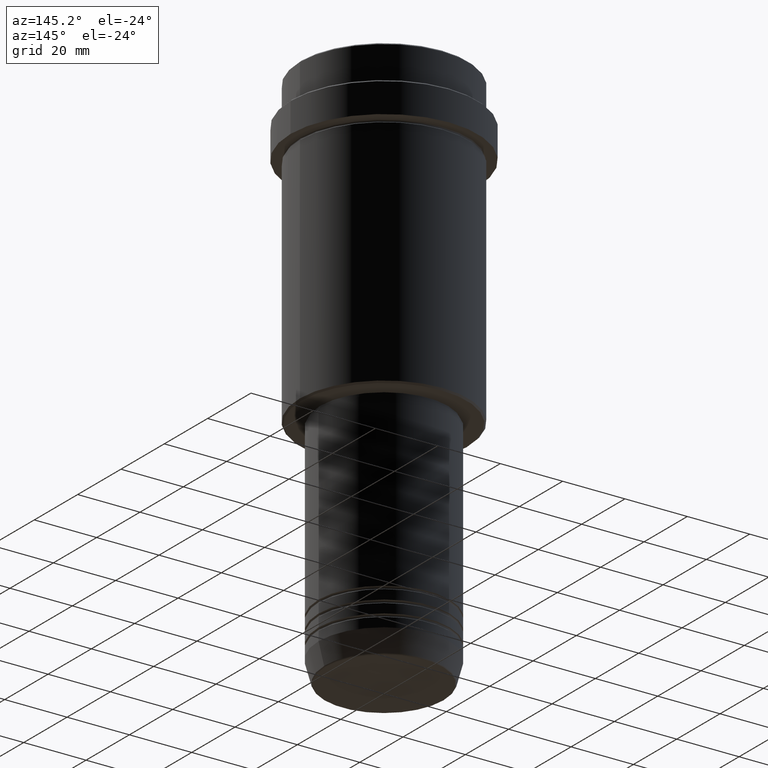
[diagram: clean part render]
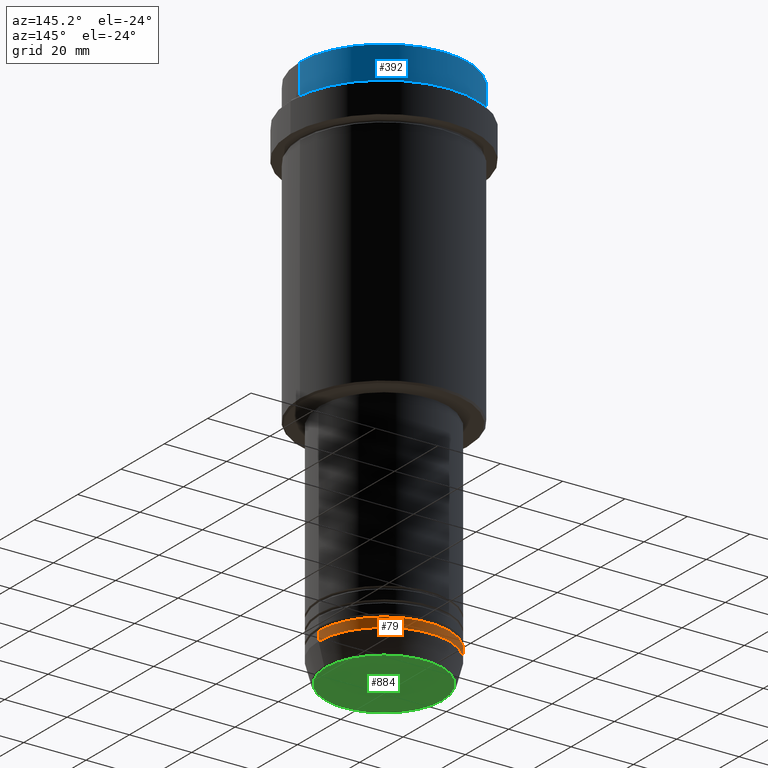
[diagram: same view with three faces highlighted in distinct colors, each labeled with its STEP entity id]
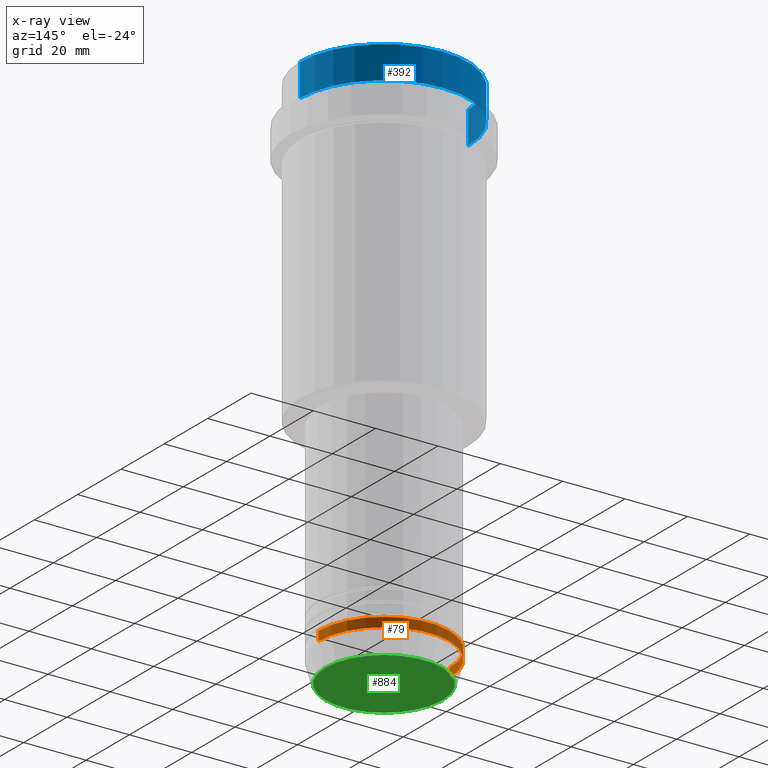
[diagram: x-ray of the same camera — body ghosted, the three highlighted faces saturated]
A machine part, auxiliary view with three faces highlighted in distinct colors.
The next image is the same camera in x-ray (body ghosted, the three faces saturated) — at least one of them is partly hidden behind the body in this view.
Their STEP definitions:

[orange] entity #79 — the highlighted cylindrical surface (partial cylindrical patch) has radius 21 mm, axis along (-0, -0, 1).
#9 = VECTOR ( 'NONE', #418, 1000.000000000000000 ) ;
#78 = CARTESIAN_POINT ( 'NONE',  ( 0.000000000000000000, 0.000000000000000000, 0.000000000000000000 ) ) ;
#79 = ADVANCED_FACE ( 'NONE', ( #920 ), #813, .T. ) ;
#156 = CIRCLE ( 'NONE', #743, 21.00000000000000000 ) ;
#157 = EDGE_LOOP ( 'NONE', ( #782, #547, #1039, #1187 ) ) ;
#205 = DIRECTION ( 'NONE',  ( 1.000000000000000000, 0.000000000000000000, 0.000000000000000000 ) ) ;
#209 = CARTESIAN_POINT ( 'NONE',  ( 21.00000000000000000, 0.000000000000000000, -163.0000000000000000 ) ) ;
#210 = EDGE_CURVE ( 'NONE', #1043, #223, #870, .T. ) ;
#223 = VERTEX_POINT ( 'NONE', #299 ) ;
#299 = CARTESIAN_POINT ( 'NONE',  ( -21.00000000000000000, 2.571758278209441661E-15, -163.0000000000000000 ) ) ;
#317 = DIRECTION ( 'NONE',  ( 1.000000000000000000, 0.000000000000000000, 0.000000000000000000 ) ) ;
#348 = CARTESIAN_POINT ( 'NONE',  ( 21.00000000000000000, 0.000000000000000000, -166.0000000000000000 ) ) ;
#371 = DIRECTION ( 'NONE',  ( -0.000000000000000000, -0.000000000000000000, 1.000000000000000000 ) ) ;
#418 = DIRECTION ( 'NONE',  ( -0.000000000000000000, -0.000000000000000000, 1.000000000000000000 ) ) ;
#456 = EDGE_CURVE ( 'NONE', #1101, #1043, #1140, .T. ) ;
#547 = ORIENTED_EDGE ( 'NONE', *, *, #1024, .T. ) ;
#743 = AXIS2_PLACEMENT_3D ( 'NONE', #1260, #775, #317 ) ;
#775 = DIRECTION ( 'NONE',  ( -0.000000000000000000, -0.000000000000000000, 1.000000000000000000 ) ) ;
#782 = ORIENTED_EDGE ( 'NONE', *, *, #1328, .T. ) ;
#813 = CYLINDRICAL_SURFACE ( 'NONE', #1188, 21.00000000000000000 ) ;
#870 = CIRCLE ( 'NONE', #1207, 21.00000000000000000 ) ;
#920 = FACE_OUTER_BOUND ( 'NONE', #157, .T. ) ;
#935 = DIRECTION ( 'NONE',  ( -0.000000000000000000, -0.000000000000000000, 1.000000000000000000 ) ) ;
#944 = CARTESIAN_POINT ( 'NONE',  ( 21.00000000000000000, 0.000000000000000000, 0.000000000000000000 ) ) ;
#1024 = EDGE_CURVE ( 'NONE', #1152, #223, #1117, .T. ) ;
#1039 = ORIENTED_EDGE ( 'NONE', *, *, #210, .F. ) ;
#1043 = VERTEX_POINT ( 'NONE', #209 ) ;
#1101 = VERTEX_POINT ( 'NONE', #348 ) ;
#1117 = LINE ( 'NONE', #1344, #1229 ) ;
#1140 = LINE ( 'NONE', #944, #9 ) ;
#1152 = VERTEX_POINT ( 'NONE', #1407 ) ;
#1171 = CARTESIAN_POINT ( 'NONE',  ( 0.000000000000000000, 0.000000000000000000, -163.0000000000000000 ) ) ;
#1187 = ORIENTED_EDGE ( 'NONE', *, *, #456, .F. ) ;
#1188 = AXIS2_PLACEMENT_3D ( 'NONE', #78, #935, #1363 ) ;
#1207 = AXIS2_PLACEMENT_3D ( 'NONE', #1171, #1382, #205 ) ;
#1229 = VECTOR ( 'NONE', #371, 1000.000000000000000 ) ;
#1260 = CARTESIAN_POINT ( 'NONE',  ( 0.000000000000000000, 0.000000000000000000, -166.0000000000000000 ) ) ;
#1328 = EDGE_CURVE ( 'NONE', #1101, #1152, #156, .T. ) ;
#1344 = CARTESIAN_POINT ( 'NONE',  ( -21.00000000000000000, 2.571758278209441661E-15, 0.000000000000000000 ) ) ;
#1363 = DIRECTION ( 'NONE',  ( 1.000000000000000000, 0.000000000000000000, 0.000000000000000000 ) ) ;
#1382 = DIRECTION ( 'NONE',  ( -0.000000000000000000, -0.000000000000000000, 1.000000000000000000 ) ) ;
#1407 = CARTESIAN_POINT ( 'NONE',  ( -21.00000000000000000, 2.571758278209441661E-15, -166.0000000000000000 ) ) ;

[blue] entity #392 — the highlighted cylindrical surface (partial cylindrical patch) has radius 27 mm, axis along (-0, -0, 1).
#13 = EDGE_CURVE ( 'NONE', #1113, #262, #289, .T. ) ;
#56 = AXIS2_PLACEMENT_3D ( 'NONE', #618, #292, #1157 ) ;
#89 = CARTESIAN_POINT ( 'NONE',  ( 26.99999999999999645, 0.000000000000000000, 0.000000000000000000 ) ) ;
#124 = DIRECTION ( 'NONE',  ( 0.000000000000000000, 0.000000000000000000, -1.000000000000000000 ) ) ;
#129 = EDGE_CURVE ( 'NONE', #1113, #1250, #716, .T. ) ;
#175 = ORIENTED_EDGE ( 'NONE', *, *, #1334, .T. ) ;
#219 = AXIS2_PLACEMENT_3D ( 'NONE', #657, #124, #345 ) ;
#256 = FACE_OUTER_BOUND ( 'NONE', #1305, .T. ) ;
#262 = VERTEX_POINT ( 'NONE', #1046 ) ;
#289 = LINE ( 'NONE', #89, #561 ) ;
#292 = DIRECTION ( 'NONE',  ( -0.000000000000000000, -0.000000000000000000, 1.000000000000000000 ) ) ;
#325 = DIRECTION ( 'NONE',  ( -0.000000000000000000, -0.000000000000000000, 1.000000000000000000 ) ) ;
#345 = DIRECTION ( 'NONE',  ( 1.000000000000000000, 0.000000000000000000, 0.000000000000000000 ) ) ;
#353 = CIRCLE ( 'NONE', #219, 26.99999999999999645 ) ;
#392 = ADVANCED_FACE ( 'NONE', ( #256 ), #689, .T. ) ;
#438 = DIRECTION ( 'NONE',  ( -0.000000000000000000, -0.000000000000000000, 1.000000000000000000 ) ) ;
#445 = CARTESIAN_POINT ( 'NONE',  ( -26.99999999999999645, 3.306546357697853339E-15, 0.000000000000000000 ) ) ;
#487 = ORIENTED_EDGE ( 'NONE', *, *, #541, .T. ) ;
#500 = CARTESIAN_POINT ( 'NONE',  ( -26.99999999999999645, 3.306546357697853339E-15, -0.5000000000000038858 ) ) ;
#541 = EDGE_CURVE ( 'NONE', #1005, #262, #353, .T. ) ;
#549 = LINE ( 'NONE', #445, #957 ) ;
#561 = VECTOR ( 'NONE', #1243, 1000.000000000000000 ) ;
#618 = CARTESIAN_POINT ( 'NONE',  ( 0.000000000000000000, 0.000000000000000000, 0.000000000000000000 ) ) ;
#657 = CARTESIAN_POINT ( 'NONE',  ( 0.000000000000000000, 0.000000000000000000, -0.5000000000000038858 ) ) ;
#689 = CYLINDRICAL_SURFACE ( 'NONE', #56, 26.99999999999999645 ) ;
#705 = CARTESIAN_POINT ( 'NONE',  ( -26.99999999999999645, 3.306546357697853339E-15, -11.00000000000000178 ) ) ;
#716 = CIRCLE ( 'NONE', #980, 26.99999999999999645 ) ;
#803 = CARTESIAN_POINT ( 'NONE',  ( 26.99999999999999645, 0.000000000000000000, -11.00000000000000178 ) ) ;
#855 = CARTESIAN_POINT ( 'NONE',  ( 0.000000000000000000, 0.000000000000000000, -11.00000000000000178 ) ) ;
#957 = VECTOR ( 'NONE', #438, 1000.000000000000000 ) ;
#980 = AXIS2_PLACEMENT_3D ( 'NONE', #855, #325, #1190 ) ;
#1005 = VERTEX_POINT ( 'NONE', #500 ) ;
#1038 = ORIENTED_EDGE ( 'NONE', *, *, #13, .F. ) ;
#1046 = CARTESIAN_POINT ( 'NONE',  ( 26.99999999999999645, 0.000000000000000000, -0.5000000000000038858 ) ) ;
#1108 = ORIENTED_EDGE ( 'NONE', *, *, #129, .T. ) ;
#1113 = VERTEX_POINT ( 'NONE', #803 ) ;
#1157 = DIRECTION ( 'NONE',  ( 1.000000000000000000, 0.000000000000000000, 0.000000000000000000 ) ) ;
#1190 = DIRECTION ( 'NONE',  ( 1.000000000000000000, 0.000000000000000000, 0.000000000000000000 ) ) ;
#1243 = DIRECTION ( 'NONE',  ( -0.000000000000000000, -0.000000000000000000, 1.000000000000000000 ) ) ;
#1250 = VERTEX_POINT ( 'NONE', #705 ) ;
#1305 = EDGE_LOOP ( 'NONE', ( #1108, #175, #487, #1038 ) ) ;
#1334 = EDGE_CURVE ( 'NONE', #1250, #1005, #549, .T. ) ;

[green] entity #884 — the highlighted planar face has unit normal (0, -0, 1).
#92 = DIRECTION ( 'NONE',  ( 1.000000000000000000, 0.000000000000000000, 0.000000000000000000 ) ) ;
#113 = ORIENTED_EDGE ( 'NONE', *, *, #449, .T. ) ;
#148 = CARTESIAN_POINT ( 'NONE',  ( 0.000000000000000000, 0.000000000000000000, -173.0000000000000000 ) ) ;
#158 = CIRCLE ( 'NONE', #516, 18.74069215899266894 ) ;
#176 = AXIS2_PLACEMENT_3D ( 'NONE', #148, #1189, #652 ) ;
#213 = EDGE_LOOP ( 'NONE', ( #113, #792 ) ) ;
#249 = PLANE ( 'NONE',  #176 ) ;
#263 = CIRCLE ( 'NONE', #1051, 18.74069215899266894 ) ;
#340 = FACE_OUTER_BOUND ( 'NONE', #213, .T. ) ;
#449 = EDGE_CURVE ( 'NONE', #473, #1151, #263, .T. ) ;
#473 = VERTEX_POINT ( 'NONE', #1241 ) ;
#516 = AXIS2_PLACEMENT_3D ( 'NONE', #811, #602, #620 ) ;
#602 = DIRECTION ( 'NONE',  ( 0.000000000000000000, 0.000000000000000000, -1.000000000000000000 ) ) ;
#620 = DIRECTION ( 'NONE',  ( 1.000000000000000000, 0.000000000000000000, 0.000000000000000000 ) ) ;
#652 = DIRECTION ( 'NONE',  ( 1.000000000000000000, 0.000000000000000000, 0.000000000000000000 ) ) ;
#659 = EDGE_CURVE ( 'NONE', #1151, #473, #158, .T. ) ;
#792 = ORIENTED_EDGE ( 'NONE', *, *, #659, .T. ) ;
#811 = CARTESIAN_POINT ( 'NONE',  ( 0.000000000000000000, 0.000000000000000000, -173.0000000000000000 ) ) ;
#884 = ADVANCED_FACE ( 'NONE', ( #340 ), #249, .F. ) ;
#1051 = AXIS2_PLACEMENT_3D ( 'NONE', #1058, #1134, #92 ) ;
#1058 = CARTESIAN_POINT ( 'NONE',  ( 0.000000000000000000, 0.000000000000000000, -173.0000000000000000 ) ) ;
#1134 = DIRECTION ( 'NONE',  ( 0.000000000000000000, 0.000000000000000000, -1.000000000000000000 ) ) ;
#1151 = VERTEX_POINT ( 'NONE', #1159 ) ;
#1159 = CARTESIAN_POINT ( 'NONE',  ( -18.74069215899266894, 2.324645815916093501E-15, -173.0000000000000000 ) ) ;
#1189 = DIRECTION ( 'NONE',  ( 0.000000000000000000, -0.000000000000000000, 1.000000000000000000 ) ) ;
#1241 = CARTESIAN_POINT ( 'NONE',  ( 18.74069215899266894, 0.000000000000000000, -173.0000000000000000 ) ) ;